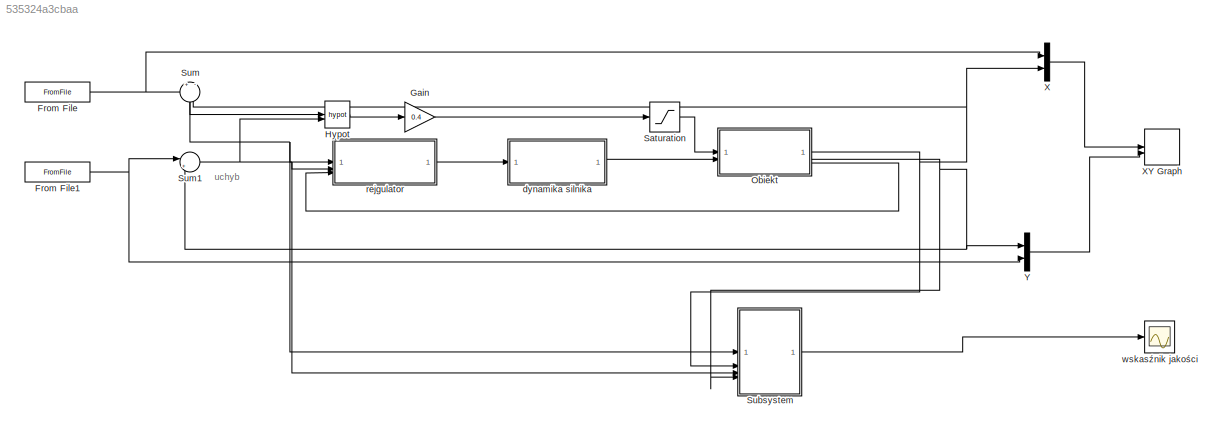
MODEL slx_535324a3cbaa
KIND model
CONFIG AbsTol = auto
CONFIG EnableMultiTasking = off
CONFIG FixedStep = 0.01
CONFIG MaxStep = auto
CONFIG MinStep = auto
CONFIG RelTol = 1e-3
CONFIG SampleTimeConstraint = Unconstrained
CONFIG SolverName = FixedStepAuto
CONFIG StartTime = 0.0
CONFIG StopTime = 120
BLOCK [FromFile] From File
  ExtrapolationAfterLastDataPoint = Hold last value
  FileName = dane_x.mat
  SampleTime = 0
BLOCK [FromFile] From File1
  ExtrapolationAfterLastDataPoint = Hold last value
  FileName = dane_y.mat
  SampleTime = 0
BLOCK [Gain] Gain
  Gain = 0.4
BLOCK [Math] Hypot
  Operator = hypot
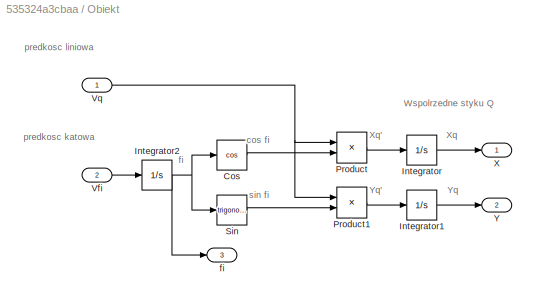
BLOCK [SubSystem] Obiekt
BLOCK [Trigonometry] Obiekt/Cos
  Operator = cos
BLOCK [Integrator] Obiekt/Integrator
BLOCK [Integrator] Obiekt/Integrator1
BLOCK [Integrator] Obiekt/Integrator2
BLOCK [Product] Obiekt/Product
BLOCK [Product] Obiekt/Product1
BLOCK [Trigonometry] Obiekt/Sin
BLOCK [Inport] Obiekt/Vfi
  Port = 2
BLOCK [Inport] Obiekt/Vq
BLOCK [Outport] Obiekt/X
BLOCK [Outport] Obiekt/Y
  Port = 2
BLOCK [Outport] Obiekt/fi
  Port = 3
BLOCK [Saturate] Saturation
  LowerLimit = -10
  UpperLimit = 10
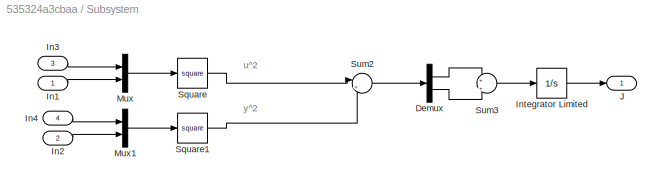
BLOCK [SubSystem] Subsystem
BLOCK [Demux] Subsystem/Demux
  Outputs = 2
BLOCK [Inport] Subsystem/In1
BLOCK [Inport] Subsystem/In2
  Port = 2
BLOCK [Inport] Subsystem/In3
  Port = 3
BLOCK [Inport] Subsystem/In4
  Port = 4
BLOCK [Integrator] Subsystem/Integrator Limited
  LimitOutput = on
  LowerSaturationLimit = 0
BLOCK [Outport] Subsystem/J
BLOCK [Mux] Subsystem/Mux
  DisplayOption = bar
  Inputs = 2
BLOCK [Mux] Subsystem/Mux1
  DisplayOption = bar
  Inputs = 2
BLOCK [Math] Subsystem/Square
  Operator = square
BLOCK [Math] Subsystem/Square1
  Operator = square
BLOCK [Sum] Subsystem/Sum2
  Inputs = |++
BLOCK [Sum] Subsystem/Sum3
  Inputs = +|+
BLOCK [Sum] Sum
  Inputs = +|-
  NameLocation = right
BLOCK [Sum] Sum1
  Inputs = |+-
BLOCK [Mux] X
  DisplayOption = bar
  Inputs = 2
BLOCK [Record] XY Graph
  CompatibilityTag = XY
  FileSettingsInternal = {"entries":[{"content":{"excelSettings":{"content":{},"type":"Streamout.ExcelSettings"}},"type":"Streamout.FileSettingStorage","uuid":""}],"packageUris":["http:\/\/schema.mathworks.com\/mf0\/streamout_blocks\/R2020a"],"version":"1.0"}
  Layout = [1 1]
  SignalsInternal = {"entries":[{"content":{"signals":[{"content":{"blockPath":[],"dimensions":[2],"domain":"","hasChildren":true,"lineColor":"#64d413","port":1,"signalID":887,"signalName":"X"},"type":"RecordBlkView.Signal","uuid":""},{"content":{"blockPath":[],"channel":[1],"dimensions":[2],"domain":"","lineColor":"#139fff","parentID":887,"plots":[1],"port":1,"signalID":888,"signalName":"X"},"type":"RecordBlkView.Si...<+948ch>
  VisualizationBindings = {"xyplotplugin":{"info":[{"series":[{"bindingParametersList":[{"parameter":"X-Axis","signalID":889,"signalName":"X(2)"},{"parameter":"Y-Axis","signalID":895,"signalName":"Y(1)"}],"seriesID":50907},{"bindingParametersList":[{"parameter":"X-Axis","signalID":888,"signalName":"X(1)"},{"parameter":"Y-Axis","signalID":896,"signalName":"Y(2)"}],"seriesID":3662}],"subplotID":1}]}}
BLOCK [Mux] Y
  DisplayOption = bar
  Inputs = 2
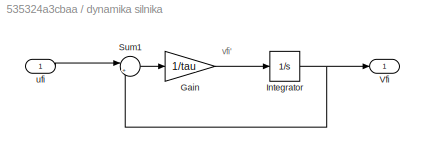
BLOCK [SubSystem] dynamika silnika
BLOCK [Gain] dynamika silnika/Gain
  Gain = 1/tau
BLOCK [Integrator] dynamika silnika/Integrator
BLOCK [Sum] dynamika silnika/Sum1
  Inputs = |+-
BLOCK [Outport] dynamika silnika/Vfi
BLOCK [Inport] dynamika silnika/ufi
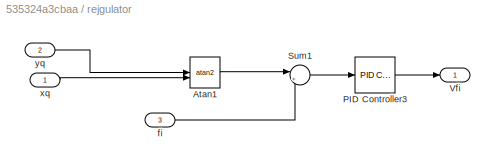
BLOCK [SubSystem] rejgulator
BLOCK [Trigonometry] rejgulator/Atan1
  Operator = atan2
BLOCK [Reference] rejgulator/PID Controller3  REF=slpidlib/PID Controller
  LibrarySourceBlock = simulink/Continuous/PID Controller
  SourceBlock = slpidlib/PID Controller
  SourceType = PID 1dof
BLOCK [Sum] rejgulator/Sum1
  Inputs = |+-
BLOCK [Outport] rejgulator/Vfi
BLOCK [Inport] rejgulator/fi
  Port = 3
BLOCK [Inport] rejgulator/xq
BLOCK [Inport] rejgulator/yq
  Port = 2
BLOCK [Scope] wskasźnik jakości
  Floating = off
  NumInputPorts = 1
  ScopeSpecificationString = Simulink.scopes.TimeScopeBlockCfg('CurrentConfiguration', extmgr.ConfigurationSet(extmgr.Configuration('Core','General UI',true),extmgr.Configuration('Core','Source UI',true),extmgr.Configuration('Sources','WiredSimulink',true,'DataLoggingVariableName','wsk_J','DataLogging',true,'DataLoggingSaveFormat','Array'),extmgr.Configuration('Visuals','Time Domain',true,'SerializedDisplays',{struct('MinYLim...<+1500ch>
ANNOTATION (root): uchyb
ANNOTATION Obiekt: Wspolrzedne styku Q
ANNOTATION Obiekt: Xq
ANNOTATION Obiekt: Xq'
ANNOTATION Obiekt: Yq
ANNOTATION Obiekt: Yq'
ANNOTATION Obiekt: cos fi
ANNOTATION Obiekt: fi
ANNOTATION Obiekt: predkosc katowa
ANNOTATION Obiekt: predkosc liniowa
ANNOTATION Obiekt: sin fi
ANNOTATION Subsystem: u^2
ANNOTATION Subsystem: y^2
ANNOTATION dynamika silnika: vfi'
NET From File1:1 -> Sum1:1, Y:2
NET From File:1 -> Sum:1, X:1
LINE Gain:1 -> Saturation:1
LINE Hypot:1 -> Gain:1
LINE Obiekt/Cos:1 -> Obiekt/Product:2
LINE Obiekt/Integrator1:1 -> Obiekt/Y:1
NET Obiekt/Integrator2:1 -> Obiekt/Cos:1, Obiekt/Sin:1, Obiekt/fi:1
LINE Obiekt/Integrator:1 -> Obiekt/X:1
LINE Obiekt/Product1:1 -> Obiekt/Integrator1:1
LINE Obiekt/Product:1 -> Obiekt/Integrator:1
LINE Obiekt/Sin:1 -> Obiekt/Product1:2
LINE Obiekt/Vfi:1 -> Obiekt/Integrator2:1
NET Obiekt/Vq:1 -> Obiekt/Product1:1, Obiekt/Product:1
NET Obiekt:1 -> Subsystem:2, Sum:2, X:2
NET Obiekt:2 -> Subsystem:4, Sum1:2, Y:1
LINE Obiekt:3 -> rejgulator:3
LINE Saturation:1 -> Obiekt:1
LINE Subsystem/Demux:1 -> Subsystem/Sum3:1
LINE Subsystem/Demux:2 -> Subsystem/Sum3:2
LINE Subsystem/In1:1 -> Subsystem/Mux:2
LINE Subsystem/In2:1 -> Subsystem/Mux1:2
LINE Subsystem/In3:1 -> Subsystem/Mux:1
LINE Subsystem/In4:1 -> Subsystem/Mux1:1
LINE Subsystem/Integrator Limited:1 -> Subsystem/J:1
LINE Subsystem/Mux1:1 -> Subsystem/Square1:1
LINE Subsystem/Mux:1 -> Subsystem/Square:1
LINE Subsystem/Square1:1 -> Subsystem/Sum2:2
LINE Subsystem/Square:1 -> Subsystem/Sum2:1
LINE Subsystem/Sum2:1 -> Subsystem/Demux:1
LINE Subsystem/Sum3:1 -> Subsystem/Integrator Limited:1
LINE Subsystem:1 -> wskasźnik jakości:1
NET Sum1:1 -> Hypot:2, Subsystem:3, rejgulator:2
NET Sum:1 -> Hypot:1, Subsystem:1, rejgulator:1
LINE X:1 -> XY Graph:1
LINE Y:1 -> XY Graph:2
LINE dynamika silnika/Gain:1 -> dynamika silnika/Integrator:1
NET dynamika silnika/Integrator:1 -> dynamika silnika/Sum1:2, dynamika silnika/Vfi:1
LINE dynamika silnika/Sum1:1 -> dynamika silnika/Gain:1
LINE dynamika silnika/ufi:1 -> dynamika silnika/Sum1:1
LINE dynamika silnika:1 -> Obiekt:2
LINE rejgulator/Atan1:1 -> rejgulator/Sum1:1
LINE rejgulator/PID Controller3:1 -> rejgulator/Vfi:1
LINE rejgulator/Sum1:1 -> rejgulator/PID Controller3:1
LINE rejgulator/fi:1 -> rejgulator/Sum1:2
LINE rejgulator/xq:1 -> rejgulator/Atan1:2
LINE rejgulator/yq:1 -> rejgulator/Atan1:1
LINE rejgulator:1 -> dynamika silnika:1
note: NET lines group one-source signal fan-out (src -> all destinations, sorted); 1:1 wires keep LINE
